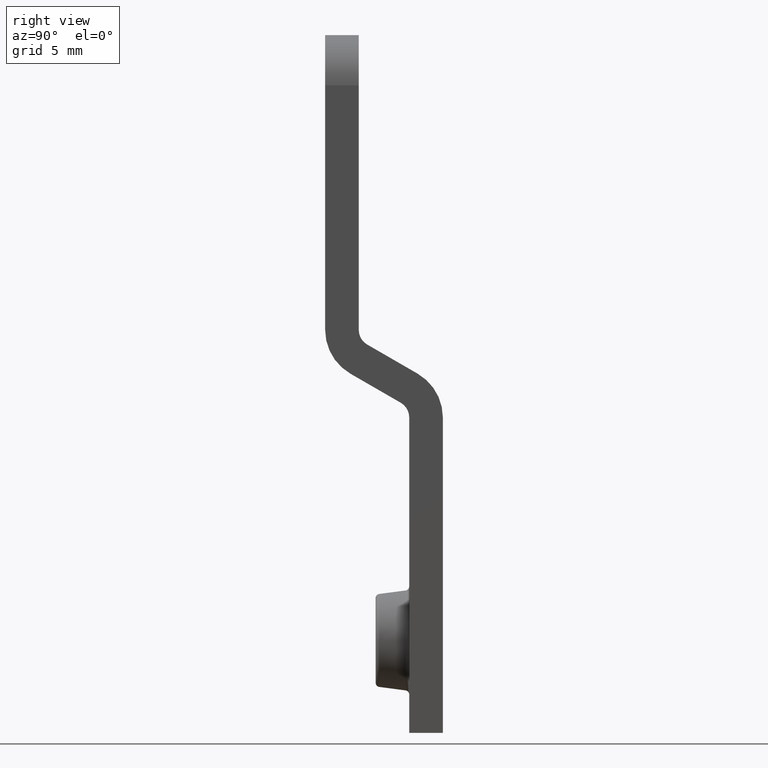
[diagram: clean part render]
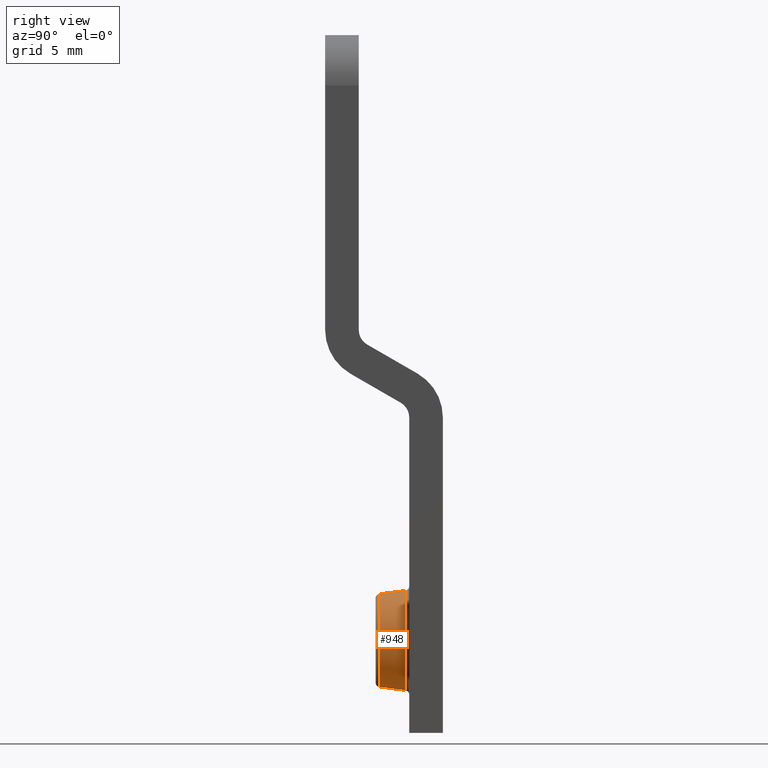
[diagram: same view with one face highlighted and labeled with its STEP entity id]
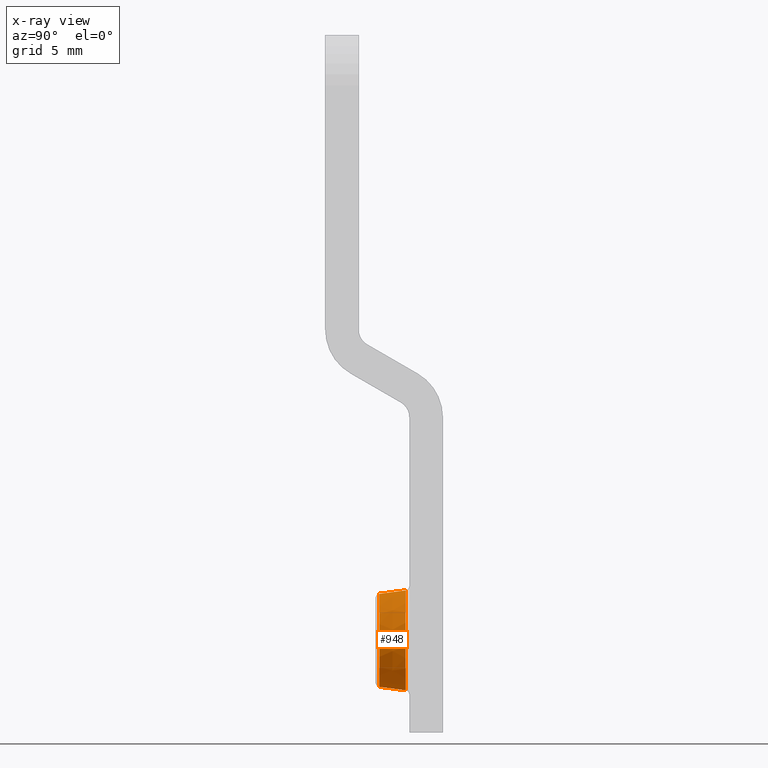
[diagram: x-ray of the same camera — body ghosted, the highlighted face saturated]
A machine part, right view. The second image highlights one B-rep face of the part: STEP entity #948.
The next image is the same camera in x-ray: the body ghosted, the highlighted face saturated — about 0% of this face is hidden behind the body in this view.
In plain terms, the highlighted conical surface has half-angle 7.5 deg.
Its self-contained STEP definition (entity closure, byte-faithful):
#4 = DIRECTION ( 'NONE',  ( 0.0000000000000000000, 0.0000000000000000000, 1.000000000000000000 ) ) ;
#5 = DIRECTION ( 'NONE',  ( -0.0000000000000000000, 1.000000000000000000, 4.621000202388938200E-017 ) ) ;
#6 = CARTESIAN_POINT ( 'NONE',  ( 0.0000000000000000000, 3.217368451944995200, 1.486746026759761000E-016 ) ) ;
#7 = AXIS2_PLACEMENT_3D ( 'NONE', #6, #5, #4 ) ;
#8 = CIRCLE ( 'NONE', #7, 2.765312104420472000 ) ;
#9 = CARTESIAN_POINT ( 'NONE',  ( 0.0000000000000000000, 3.217368451944995200, -2.765312104420472000 ) ) ;
#30 = DIRECTION ( 'NONE',  ( -1.598432043329165000E-017, 0.9914448613738104900, 0.1305261922200519600 ) ) ;
#31 = VECTOR ( 'NONE', #30, 999.9999999999998900 ) ;
#32 = CARTESIAN_POINT ( 'NONE',  ( -3.673819061467132300E-016, 5.000000000000004400, 3.000000000000000900 ) ) ;
#33 = LINE ( 'NONE', #32, #31 ) ;
#148 = CARTESIAN_POINT ( 'NONE',  ( 0.0000000000000000000, 4.782631548055016800, -2.971382900404736700 ) ) ;
#529 = DIRECTION ( 'NONE',  ( 0.0000000000000000000, 0.0000000000000000000, -1.000000000000000000 ) ) ;
#530 = DIRECTION ( 'NONE',  ( -0.0000000000000000000, 1.000000000000000000, 4.621000202388938200E-017 ) ) ;
#531 = AXIS2_PLACEMENT_3D ( 'NONE', #534, #530, #529 ) ;
#534 = CARTESIAN_POINT ( 'NONE',  ( 0.0000000000000000000, 5.000000000000004400, 2.310500101194471200E-016 ) ) ;
#535 = CONICAL_SURFACE ( 'NONE', #531, 3.000000000000000400, 0.1308996938995750100 ) ;
#539 = FACE_OUTER_BOUND ( 'NONE', #946, .T. ) ;
#549 = DIRECTION ( 'NONE',  ( 0.0000000000000000000, 0.0000000000000000000, 1.000000000000000000 ) ) ;
#550 = DIRECTION ( 'NONE',  ( 0.0000000000000000000, -1.000000000000000000, -4.621000202388938200E-017 ) ) ;
#551 = AXIS2_PLACEMENT_3D ( 'NONE', #556, #550, #549 ) ;
#552 = CIRCLE ( 'NONE', #551, 2.971382900404737200 ) ;
#556 = CARTESIAN_POINT ( 'NONE',  ( 0.0000000000000000000, 4.782631548055016800, 2.210054135151395700E-016 ) ) ;
#605 = VERTEX_POINT ( 'NONE', #951 ) ;
#613 = EDGE_CURVE ( 'NONE', #635, #672, #963, .T. ) ;
#618 = VERTEX_POINT ( 'NONE', #977 ) ;
#622 = EDGE_CURVE ( 'NONE', #618, #605, #33, .T. ) ;
#634 = EDGE_CURVE ( 'NONE', #618, #635, #8, .T. ) ;
#635 = VERTEX_POINT ( 'NONE', #9 ) ;
#672 = VERTEX_POINT ( 'NONE', #148 ) ;
#933 = ORIENTED_EDGE ( 'NONE', *, *, #934, .T. ) ;
#934 = EDGE_CURVE ( 'NONE', #672, #605, #552, .T. ) ;
#943 = ORIENTED_EDGE ( 'NONE', *, *, #622, .F. ) ;
#944 = ORIENTED_EDGE ( 'NONE', *, *, #634, .T. ) ;
#945 = ORIENTED_EDGE ( 'NONE', *, *, #613, .T. ) ;
#946 = EDGE_LOOP ( 'NONE', ( #943, #944, #945, #933 ) ) ;
#948 = ADVANCED_FACE ( 'NONE', ( #539 ), #535, .T. ) ;
#951 = CARTESIAN_POINT ( 'NONE',  ( -3.638774379474804900E-016, 4.782631548055016800, 2.971382900404737600 ) ) ;
#960 = DIRECTION ( 'NONE',  ( 0.0000000000000000000, 0.9914448613738104900, -0.1305261922200518500 ) ) ;
#961 = VECTOR ( 'NONE', #960, 999.9999999999998900 ) ;
#962 = CARTESIAN_POINT ( 'NONE',  ( 0.0000000000000000000, 5.000000000000004400, -3.000000000000000000 ) ) ;
#963 = LINE ( 'NONE', #962, #961 ) ;
#977 = CARTESIAN_POINT ( 'NONE',  ( -3.512596576425022700E-016, 3.217368451944995200, 2.765312104420472000 ) ) ;